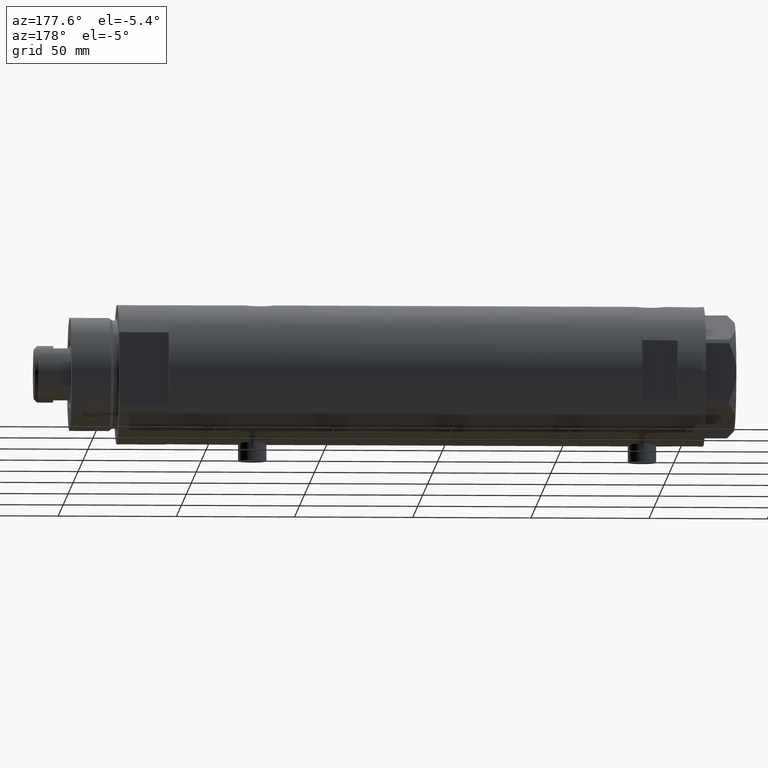
[diagram: clean part render]
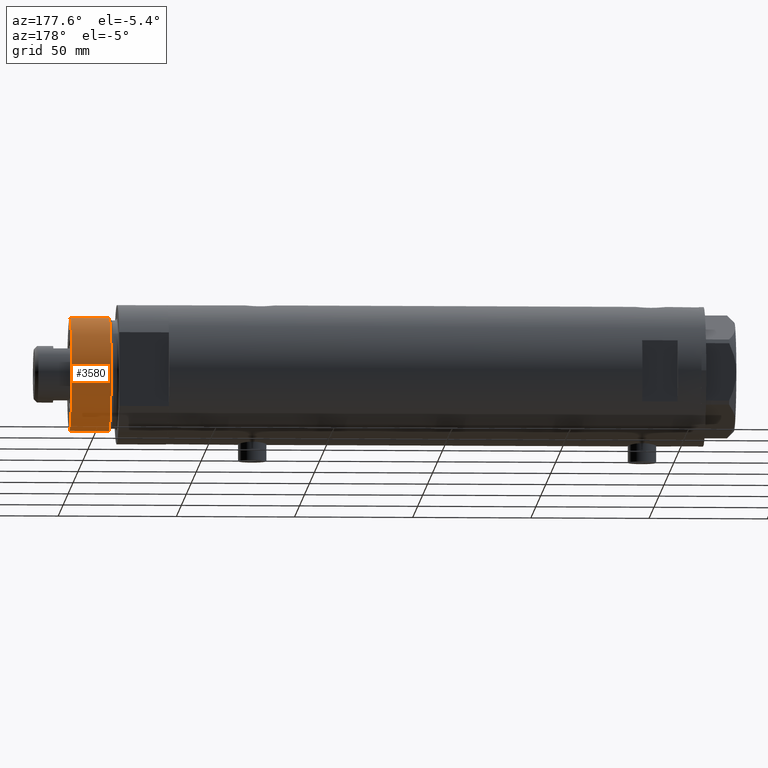
[diagram: same view with one face highlighted and labeled with its STEP entity id]
A machine part, auxiliary view. The second image highlights one B-rep face of the part: STEP entity #3580.
In plain terms, the highlighted cylindrical surface (partial cylindrical patch) has radius 24 mm, axis along (-1, -0, 0).
Its self-contained STEP definition (entity closure, byte-faithful):
#294 = DIRECTION ( 'NONE',  ( -0.000000000000000000, -0.000000000000000000, -1.000000000000000000 ) ) ;
#329 = DIRECTION ( 'NONE',  ( 0.000000000000000000, 0.000000000000000000, 1.000000000000000000 ) ) ;
#341 = CARTESIAN_POINT ( 'NONE',  ( 0.000000000000000000, 0.000000000000000000, 24.37384048104054557 ) ) ;
#534 = AXIS2_PLACEMENT_3D ( 'NONE', #341, #4410, #1090 ) ;
#772 = VERTEX_POINT ( 'NONE', #2926 ) ;
#837 = EDGE_CURVE ( 'NONE', #1419, #2164, #2961, .T. ) ;
#1090 = DIRECTION ( 'NONE',  ( 1.000000000000000000, 0.000000000000000000, 0.000000000000000000 ) ) ;
#1093 = CYLINDRICAL_SURFACE ( 'NONE', #4294, 24.00000000000000355 ) ;
#1098 = CIRCLE ( 'NONE', #534, 24.00000000000000355 ) ;
#1179 = CARTESIAN_POINT ( 'NONE',  ( 24.00000000000000355, 2.939152317953648289E-15, 41.00000000000000000 ) ) ;
#1192 = AXIS2_PLACEMENT_3D ( 'NONE', #1797, #329, #2589 ) ;
#1200 = ORIENTED_EDGE ( 'NONE', *, *, #4201, .F. ) ;
#1419 = VERTEX_POINT ( 'NONE', #4375 ) ;
#1520 = DIRECTION ( 'NONE',  ( -0.000000000000000000, -0.000000000000000000, -1.000000000000000000 ) ) ;
#1797 = CARTESIAN_POINT ( 'NONE',  ( 0.000000000000000000, 0.000000000000000000, 41.00000000000000000 ) ) ;
#1858 = CARTESIAN_POINT ( 'NONE',  ( 0.000000000000000000, 0.000000000000000000, 41.00000000000000000 ) ) ;
#2065 = ORIENTED_EDGE ( 'NONE', *, *, #3609, .F. ) ;
#2164 = VERTEX_POINT ( 'NONE', #3194 ) ;
#2211 = FACE_OUTER_BOUND ( 'NONE', #2668, .T. ) ;
#2368 = ORIENTED_EDGE ( 'NONE', *, *, #837, .T. ) ;
#2419 = CIRCLE ( 'NONE', #1192, 24.00000000000000355 ) ;
#2589 = DIRECTION ( 'NONE',  ( 1.000000000000000000, 0.000000000000000000, 0.000000000000000000 ) ) ;
#2614 = VERTEX_POINT ( 'NONE', #3466 ) ;
#2668 = EDGE_LOOP ( 'NONE', ( #2065, #2368, #3664, #1200 ) ) ;
#2926 = CARTESIAN_POINT ( 'NONE',  ( -24.00000000000000355, 0.000000000000000000, 24.37384048104054557 ) ) ;
#2961 = LINE ( 'NONE', #1179, #3951 ) ;
#3172 = VECTOR ( 'NONE', #3909, 1000.000000000000000 ) ;
#3194 = CARTESIAN_POINT ( 'NONE',  ( 24.00000000000000355, 2.939152317953648289E-15, 24.37384048104054557 ) ) ;
#3466 = CARTESIAN_POINT ( 'NONE',  ( -24.00000000000000355, 0.000000000000000000, 41.00000000000000000 ) ) ;
#3516 = LINE ( 'NONE', #4568, #3172 ) ;
#3580 = ADVANCED_FACE ( 'NONE', ( #2211 ), #1093, .T. ) ;
#3609 = EDGE_CURVE ( 'NONE', #1419, #2614, #2419, .T. ) ;
#3664 = ORIENTED_EDGE ( 'NONE', *, *, #4041, .T. ) ;
#3684 = DIRECTION ( 'NONE',  ( -1.000000000000000000, 0.000000000000000000, 0.000000000000000000 ) ) ;
#3909 = DIRECTION ( 'NONE',  ( -0.000000000000000000, -0.000000000000000000, -1.000000000000000000 ) ) ;
#3951 = VECTOR ( 'NONE', #1520, 1000.000000000000000 ) ;
#4041 = EDGE_CURVE ( 'NONE', #2164, #772, #1098, .T. ) ;
#4201 = EDGE_CURVE ( 'NONE', #2614, #772, #3516, .T. ) ;
#4294 = AXIS2_PLACEMENT_3D ( 'NONE', #1858, #294, #3684 ) ;
#4375 = CARTESIAN_POINT ( 'NONE',  ( 24.00000000000000355, 2.939152317953648289E-15, 41.00000000000000000 ) ) ;
#4410 = DIRECTION ( 'NONE',  ( -0.000000000000000000, -0.000000000000000000, 1.000000000000000000 ) ) ;
#4568 = CARTESIAN_POINT ( 'NONE',  ( -24.00000000000000355, 0.000000000000000000, 41.00000000000000000 ) ) ;